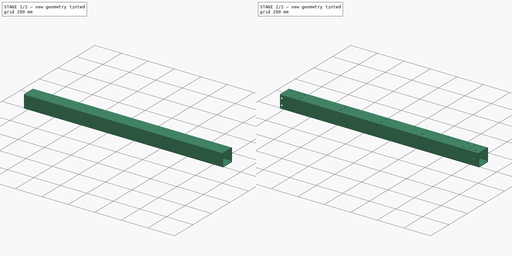
[diagram: build sequence overview — one tinted view per stage of 2, left to right]
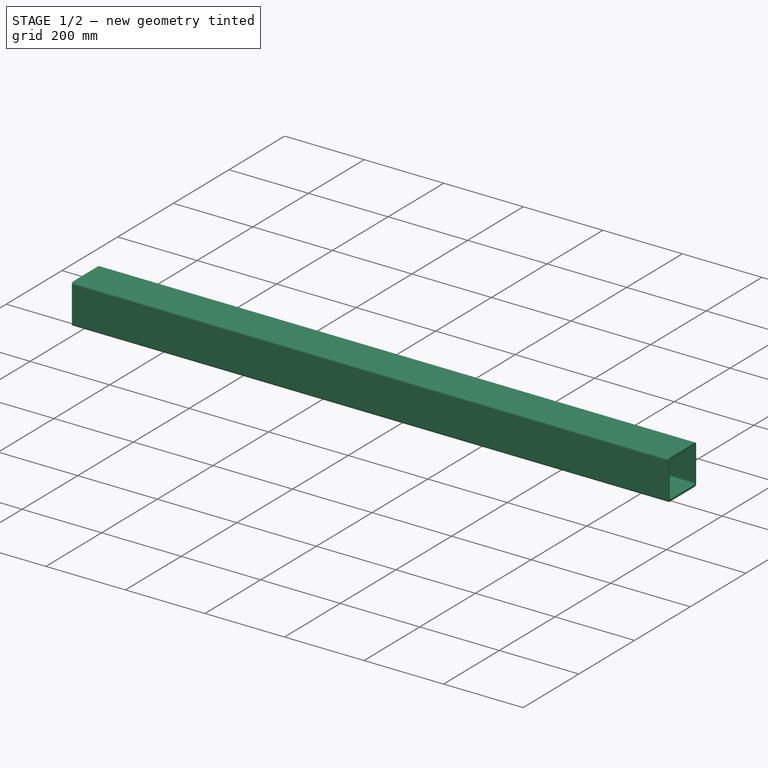
[diagram: stage 1 of 2 — iso view after this stage's code; geometry added in this stage tinted green]
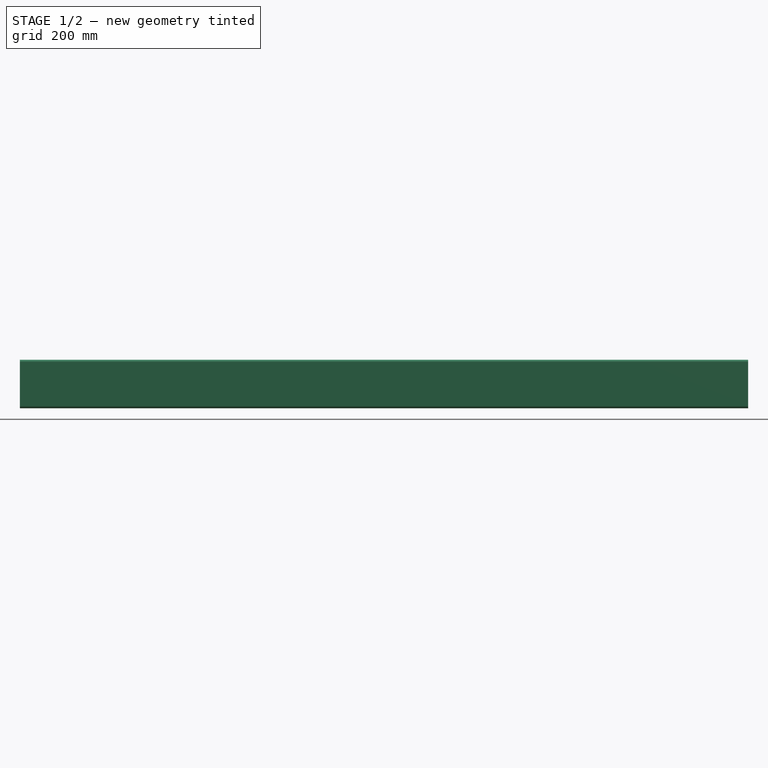
[diagram: stage 1 of 2 — front view after this stage's code; geometry added in this stage tinted green]
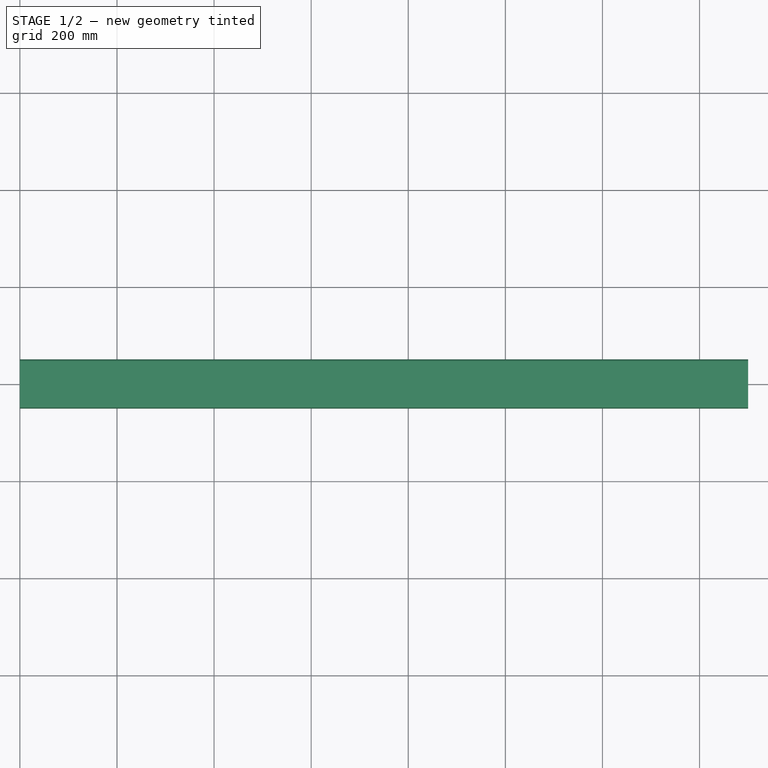
[diagram: stage 1 of 2 — top view after this stage's code; geometry added in this stage tinted green]
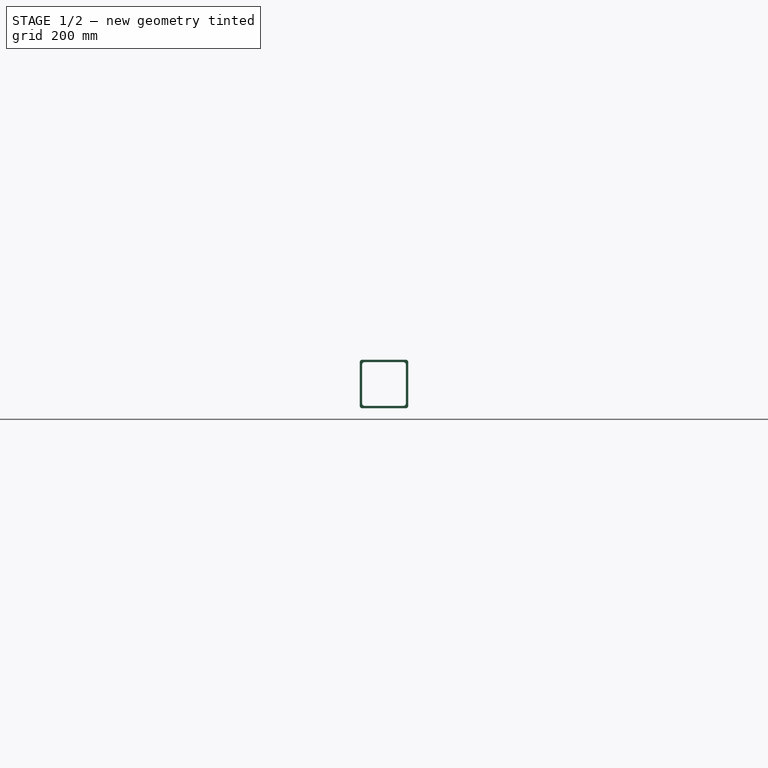
[diagram: stage 1 of 2 — right view after this stage's code; geometry added in this stage tinted green]
FCSTD DOCUMENT  (FreeCAD 0.19R24366 (Git))
Label: Base 100x100mm box tube
License: All rights reserved
LicenseURL: http://en.wikipedia.org/wiki/All_rights_reserved
objects: Sketcher::SketchObject×4, PartDesign::Pocket×3, PartDesign::Pad×1, PartDesign::Body×1
note: 13 computed .brp shape members not serialized (recipe doc carries the construction recipe); baked Part::Feature solids carry a one-line shape summary decoded from their .brp

FEATURE [Sketcher::SketchObject] Sketch  label="Tube cross section"
  FullyConstrained = true
  MapMode = 5
  Placement = pos=(0,0,0) rot=(0.57735,0.57735,0.57735;2.0944rad)
  Support = -> [YZ_Plane]
  sketch-geometry (16):
    g0: LineSegment StartX=-40 StartY=45 StartZ=0 EndX=40 EndY=45 EndZ=0
    g1: LineSegment StartX=45 StartY=40 StartZ=0 EndX=45 EndY=-40 EndZ=0
    g2: LineSegment StartX=40 StartY=-45 StartZ=0 EndX=-40 EndY=-45 EndZ=0
    g3: LineSegment StartX=-45 StartY=-40 StartZ=0 EndX=-45 EndY=40 EndZ=0
    g4: LineSegment StartX=-45 StartY=50 StartZ=0 EndX=45 EndY=50 EndZ=0
    g5: LineSegment StartX=50 StartY=45 StartZ=0 EndX=50 EndY=-45 EndZ=0
    g6: LineSegment StartX=45 StartY=-50 StartZ=0 EndX=-45 EndY=-50 EndZ=0
    g7: LineSegment StartX=-50 StartY=-45 StartZ=0 EndX=-50 EndY=45 EndZ=0
    g8: ArcOfCircle CenterX=-40 CenterY=40 CenterZ=0 NormalX=0 NormalY=0 NormalZ=1 AngleXU=0 Radius=5 StartAngle=1.5708 EndAngle=3.14159
    g9: ArcOfCircle CenterX=-40 CenterY=-40 CenterZ=0 NormalX=0 NormalY=0 NormalZ=1 AngleXU=0 Radius=5 StartAngle=3.14159 EndAngle=4.71239
    g10: ArcOfCircle CenterX=40 CenterY=-40 CenterZ=0 NormalX=0 NormalY=0 NormalZ=1 AngleXU=0 Radius=5 StartAngle=4.71239 EndAngle=6.28319
    g11: ArcOfCircle CenterX=40 CenterY=40 CenterZ=0 NormalX=0 NormalY=0 NormalZ=1 AngleXU=0 Radius=5 StartAngle=-9e-16 EndAngle=1.5708
    g12: ArcOfCircle CenterX=45 CenterY=45 CenterZ=0 NormalX=0 NormalY=0 NormalZ=1 AngleXU=0 Radius=5 StartAngle=4e-16 EndAngle=1.5708
    g13: ArcOfCircle CenterX=45 CenterY=-45 CenterZ=0 NormalX=0 NormalY=0 NormalZ=1 AngleXU=0 Radius=5 StartAngle=4.71239 EndAngle=6.28319
    g14: ArcOfCircle CenterX=-45 CenterY=-45 CenterZ=0 NormalX=0 NormalY=0 NormalZ=1 AngleXU=0 Radius=5 StartAngle=3.14159 EndAngle=4.71239
    g15: ArcOfCircle CenterX=-45 CenterY=45 CenterZ=0 NormalX=0 NormalY=0 NormalZ=1 AngleXU=0 Radius=5 StartAngle=1.5708 EndAngle=3.14159
  constraints (36):
    c: Horizontal(g0)
    c: Horizontal(g2)
    c: Vertical(g1)
    c: Vertical(g3)
    c: Horizontal(g4)
    c: Horizontal(g6)
    c: Vertical(g5)
    c: Vertical(g7)
    c: Tangent(g0,g8) = 1.5708
    c: Tangent(g3,g8) = 1.5708
    c: Tangent(g3,g9) = 1.5708
    c: Tangent(g2,g9) = 1.5708
    c: Tangent(g2,g10) = 1.5708
    c: Tangent(g1,g10) = 1.5708
    c: Tangent(g1,g11) = 1.5708
    c: Tangent(g0,g11) = 1.5708
    c: Tangent(g4,g12) = 1.5708
    c: Tangent(g5,g12) = 1.5708
    c: Tangent(g5,g13) = 1.5708
    c: Tangent(g6,g13) = 1.5708
    c: Tangent(g6,g14) = 1.5708
    c: Tangent(g7,g14) = 1.5708
    c: Tangent(g7,g15) = 1.5708
    c: Tangent(g4,g15) = 1.5708
    c: DistanceX(g7,g5) = 100
    c: DistanceY(g6,g4) = 100
    c: Radius(g15) = 5
    c: Equal(g15,g8)
    c: Equal(g14,g10)
    c: Equal(g10,g13)
    c: Symmetric(g4,g6,g-1)
    c: Symmetric(g7,g5,g-2)
    c: Symmetric(g3,g1,g-2)
    c: Symmetric(g0,g2,g-1)
    c: DistanceY(g0,g4) = 5
    c: DistanceX(g1,g5) = 5
FEATURE [PartDesign::Pad] Pad  label="Length of tube section"
  Direction = (1,1,1)
  Length = 1500
  Length2 = 100
  Placement = pos=(0,0,0) rot=(0.57735,0.57735,0.57735;2.0944rad)
  Profile = -> Sketch
  Type = 0
FEATURE [Sketcher::SketchObject] Sketch004  label="Clearance holes for rail bolts"
  FullyConstrained = true
  MapMode = 5
  Placement = pos=(0,0,0) rot=(1,0,0;1.5708rad)
  Support = -> [XZ_Plane]
  sketch-geometry (61):
    g0: GeomPoint X=890.218 Y=0 Z=0
    g1: GeomPoint X=880.218 Y=0 Z=0
    g2: LineSegment StartX=880.218 StartY=0 StartZ=0 EndX=880.218 EndY=24 EndZ=0
    g3: LineSegment StartX=880.218 StartY=0 StartZ=0 EndX=880.218 EndY=-24 EndZ=0
    g4: Circle CenterX=880.218 CenterY=24 CenterZ=0 NormalX=0 NormalY=0 NormalZ=1 AngleXU=0 Radius=4
    g5: Circle CenterX=880.218 CenterY=-24 CenterZ=0 NormalX=0 NormalY=0 NormalZ=1 AngleXU=0 Radius=4
    g6: Circle CenterX=820.218 CenterY=24 CenterZ=0 NormalX=0 NormalY=0 NormalZ=1 AngleXU=0 Radius=4
    g7: LineSegment StartX=880.218 StartY=24 StartZ=0 EndX=820.218 EndY=24 EndZ=0
    g8: Circle CenterX=760.218 CenterY=24 CenterZ=0 NormalX=0 NormalY=0 NormalZ=1 AngleXU=0 Radius=4
    g9: LineSegment StartX=820.218 StartY=24 StartZ=0 EndX=760.218 EndY=24 EndZ=0
    g10: Circle CenterX=700.218 CenterY=24 CenterZ=0 NormalX=0 NormalY=0 NormalZ=1 AngleXU=0 Radius=4
    g11: LineSegment StartX=760.218 StartY=24 StartZ=0 EndX=700.218 EndY=24 EndZ=0
    g12: Circle CenterX=640.218 CenterY=24 CenterZ=0 NormalX=0 NormalY=0 NormalZ=1 AngleXU=0 Radius=4
    g13: LineSegment StartX=700.218 StartY=24 StartZ=0 EndX=640.218 EndY=24 EndZ=0
    g14: Circle CenterX=580.218 CenterY=24 CenterZ=0 NormalX=0 NormalY=0 NormalZ=1 AngleXU=0 Radius=4
    g15: LineSegment StartX=640.218 StartY=24 StartZ=0 EndX=580.218 EndY=24 EndZ=0
    g16: Circle CenterX=520.218 CenterY=24 CenterZ=0 NormalX=0 NormalY=0 NormalZ=1 AngleXU=0 Radius=4
    g17: LineSegment StartX=580.218 StartY=24 StartZ=0 EndX=520.218 EndY=24 EndZ=0
    g18: Circle CenterX=460.218 CenterY=24 CenterZ=0 NormalX=0 NormalY=0 NormalZ=1 AngleXU=0 Radius=4
    g19: LineSegment StartX=520.218 StartY=24 StartZ=0 EndX=460.218 EndY=24 EndZ=0
    g20: Circle CenterX=400.218 CenterY=24 CenterZ=0 NormalX=0 NormalY=0 NormalZ=1 AngleXU=0 Radius=4
    g21: LineSegment StartX=460.218 StartY=24 StartZ=0 EndX=400.218 EndY=24 EndZ=0
    g22: Circle CenterX=340.218 CenterY=24 CenterZ=0 NormalX=0 NormalY=0 NormalZ=1 AngleXU=0 Radius=4
    g23: LineSegment StartX=400.218 StartY=24 StartZ=0 EndX=340.218 EndY=24 EndZ=0
    g24: Circle CenterX=280.218 CenterY=24 CenterZ=0 NormalX=0 NormalY=0 NormalZ=1 AngleXU=0 Radius=4
    g25: LineSegment StartX=340.218 StartY=24 StartZ=0 EndX=280.218 EndY=24 EndZ=0
    g26: Circle CenterX=220.218 CenterY=24 CenterZ=0 NormalX=0 NormalY=0 NormalZ=1 AngleXU=0 Radius=4
    g27: LineSegment StartX=280.218 StartY=24 StartZ=0 EndX=220.218 EndY=24 EndZ=0
    g28: Circle CenterX=160.218 CenterY=24 CenterZ=0 NormalX=0 NormalY=0 NormalZ=1 AngleXU=0 Radius=4
    g29: LineSegment StartX=220.218 StartY=24 StartZ=0 EndX=160.218 EndY=24 EndZ=0
    g30: Circle CenterX=100.218 CenterY=24 CenterZ=0 NormalX=0 NormalY=0 NormalZ=1 AngleXU=0 Radius=4
    g31: LineSegment StartX=160.218 StartY=24 StartZ=0 EndX=100.218 EndY=24 EndZ=0
    g32: Circle CenterX=820.218 CenterY=-24 CenterZ=0 NormalX=0 NormalY=0 NormalZ=1 AngleXU=0 Radius=4
    g33: LineSegment StartX=880.218 StartY=-24 StartZ=0 EndX=820.218 EndY=-24 EndZ=0
    g34: Circle CenterX=760.218 CenterY=-24 CenterZ=0 NormalX=0 NormalY=0 NormalZ=1 AngleXU=0 Radius=4
    g35: LineSegment StartX=820.218 StartY=-24 StartZ=0 EndX=760.218 EndY=-24 EndZ=0
    g36: Circle CenterX=700.218 CenterY=-24 CenterZ=0 NormalX=0 NormalY=0 NormalZ=1 AngleXU=0 Radius=4
    g37: LineSegment StartX=760.218 StartY=-24 StartZ=0 EndX=700.218 EndY=-24 EndZ=0
    g38: Circle CenterX=640.218 CenterY=-24 CenterZ=0 NormalX=0 NormalY=0 NormalZ=1 AngleXU=0 Radius=4
    g39: LineSegment StartX=700.218 StartY=-24 StartZ=0 EndX=640.218 EndY=-24 EndZ=0
    g40: Circle CenterX=580.218 CenterY=-24 CenterZ=0 NormalX=0 NormalY=0 NormalZ=1 AngleXU=0 Radius=4
    g41: LineSegment StartX=640.218 StartY=-24 StartZ=0 EndX=580.218 EndY=-24 EndZ=0
    g42: Circle CenterX=520.218 CenterY=-24 CenterZ=0 NormalX=0 NormalY=0 NormalZ=1 AngleXU=0 Radius=4
    g43: LineSegment StartX=580.218 StartY=-24 StartZ=0 EndX=520.218 EndY=-24 EndZ=0
    g44: Circle CenterX=460.218 CenterY=-24 CenterZ=0 NormalX=0 NormalY=0 NormalZ=1 AngleXU=0 Radius=4
    g45: LineSegment StartX=520.218 StartY=-24 StartZ=0 EndX=460.218 EndY=-24 EndZ=0
    g46: Circle CenterX=400.218 CenterY=-24 CenterZ=0 NormalX=0 NormalY=0 NormalZ=1 AngleXU=0 Radius=4
    g47: LineSegment StartX=460.218 StartY=-24 StartZ=0 EndX=400.218 EndY=-24 EndZ=0
    g48: Circle CenterX=340.218 CenterY=-24 CenterZ=0 NormalX=0 NormalY=0 NormalZ=1 AngleXU=0 Radius=4
    g49: LineSegment StartX=400.218 StartY=-24 StartZ=0 EndX=340.218 EndY=-24 EndZ=0
    g50: Circle CenterX=280.218 CenterY=-24 CenterZ=0 NormalX=0 NormalY=0 NormalZ=1 AngleXU=0 Radius=4
    g51: LineSegment StartX=340.218 StartY=-24 StartZ=0 EndX=280.218 EndY=-24 EndZ=0
    g52: Circle CenterX=220.218 CenterY=-24 CenterZ=0 NormalX=0 NormalY=0 NormalZ=1 AngleXU=0 Radius=4
    g53: LineSegment StartX=280.218 StartY=-24 StartZ=0 EndX=220.218 EndY=-24 EndZ=0
    g54: Circle CenterX=160.218 CenterY=-24 CenterZ=0 NormalX=0 NormalY=0 NormalZ=1 AngleXU=0 Radius=4
    g55: LineSegment StartX=220.218 StartY=-24 StartZ=0 EndX=160.218 EndY=-24 EndZ=0
    g56: Circle CenterX=100.218 CenterY=-24 CenterZ=0 NormalX=0 NormalY=0 NormalZ=1 AngleXU=0 Radius=4
    g57: LineSegment StartX=160.218 StartY=-24 StartZ=0 EndX=100.218 EndY=-24 EndZ=0
    g58: LineSegment StartX=100.218 StartY=24 StartZ=0 EndX=100.218 EndY=-24 EndZ=0
    g59: LineSegment StartX=100.218 StartY=0 StartZ=0 EndX=90.218 EndY=0 EndZ=0
    g60: LineSegment StartX=880.218 StartY=0 StartZ=0 EndX=890.218 EndY=0 EndZ=0
  constraints (153):
    c: PointOnObject(g0,g-1)
    c: DistanceX(g-1,g0) = 890.218  'OFFSET ALONG RAIL'
    c: PointOnObject(g1,g-1)
    c: DistanceX(g1,g0) = 10  'E from rail'
    c: Coincident(g2,g1)
    c: Vertical(g2)
    c: Coincident(g3,g2)
    c: Vertical(g3)
    c: Equal(g3,g2)
    c: DistanceY(g3,g2) = 48  'W from slider'
    c: Coincident(g4,g2)
    c: Coincident(g5,g3)
    c: Radius(g4) = 4  'CLEARANCE HOLE DIA'
    c: Equal(g4,g6) = 4
    c: Coincident(g4,g7)
    c: Coincident(g6,g7)
    c: Distance(g7) = 60  'P from rail'
    c: Angle(g7) = 3.14159
    c: Equal(g4,g8) = 4
    c: Coincident(g6,g9)
    c: Coincident(g8,g9)
    c: Equal(g7,g9)
    c: Parallel(g9,g7)
    c: Equal(g4,g10) = 4
    c: Coincident(g8,g11)
    c: Coincident(g10,g11)
    c: Equal(g7,g11)
    c: Parallel(g11,g7)
    c: Equal(g4,g12) = 4
    c: Coincident(g10,g13)
    c: Coincident(g12,g13)
    c: Equal(g7,g13)
    c: Parallel(g13,g7)
    c: Equal(g4,g14) = 4
    c: Coincident(g12,g15)
    c: Coincident(g14,g15)
    c: Equal(g7,g15)
    c: Parallel(g15,g7)
    c: Equal(g4,g16) = 4
    c: Coincident(g14,g17)
    c: Coincident(g16,g17)
    c: Equal(g7,g17)
    c: Parallel(g17,g7)
    c: Equal(g4,g18) = 4
    c: Coincident(g16,g19)
    c: Coincident(g18,g19)
    c: Equal(g7,g19)
    c: Parallel(g19,g7)
    c: Equal(g4,g20) = 4
    c: Coincident(g18,g21)
    c: Coincident(g20,g21)
    c: Equal(g7,g21)
    c: Parallel(g21,g7)
    c: Equal(g4,g22) = 4
    c: Coincident(g20,g23)
    c: Coincident(g22,g23)
    c: Equal(g7,g23)
    c: Parallel(g23,g7)
    c: Equal(g4,g24) = 4
    c: Coincident(g22,g25)
    c: Coincident(g24,g25)
    c: Equal(g7,g25)
    c: Parallel(g25,g7)
    c: Equal(g4,g26) = 4
    c: Coincident(g24,g27)
    c: Coincident(g26,g27)
    c: Equal(g7,g27)
    c: Parallel(g27,g7)
    c: Equal(g4,g28) = 4
    c: Coincident(g26,g29)
    c: Coincident(g28,g29)
    c: Equal(g7,g29)
    c: Parallel(g29,g7)
    c: Equal(g4,g30) = 4
    c: Coincident(g28,g31)
    c: Coincident(g30,g31)
    c: Equal(g7,g31)
    c: Parallel(g31,g7)
    c: Equal(g5,g32) = 4
    c: Coincident(g5,g33)
    c: Coincident(g32,g33)
    c: Angle(g33) = -3.14159
    c: Equal(g5,g34) = 4
    c: Coincident(g32,g35)
    c: Coincident(g34,g35)
    c: Equal(g33,g35)
    c: Parallel(g35,g33)
    c: Equal(g5,g36) = 4
    c: Coincident(g34,g37)
    c: Coincident(g36,g37)
    c: Equal(g33,g37)
    c: Parallel(g37,g33)
    c: Equal(g5,g38) = 4
    c: Coincident(g36,g39)
    c: Coincident(g38,g39)
    c: Equal(g33,g39)
    c: Parallel(g39,g33)
    c: Equal(g5,g40) = 4
    c: Coincident(g38,g41)
    c: Coincident(g40,g41)
    c: Equal(g33,g41)
    c: Parallel(g41,g33)
    c: Equal(g5,g42) = 4
    c: Coincident(g40,g43)
    c: Coincident(g42,g43)
    c: Equal(g33,g43)
    c: Parallel(g43,g33)
    c: Equal(g5,g44) = 4
    c: Coincident(g42,g45)
    c: Coincident(g44,g45)
    c: Equal(g33,g45)
    c: Parallel(g45,g33)
    c: Equal(g5,g46) = 4
    c: Coincident(g44,g47)
    c: Coincident(g46,g47)
    c: Equal(g33,g47)
    c: Parallel(g47,g33)
    c: Equal(g5,g48) = 4
    c: Coincident(g46,g49)
    c: Coincident(g48,g49)
    c: Equal(g33,g49)
    c: Parallel(g49,g33)
    c: Equal(g5,g50) = 4
    c: Coincident(g48,g51)
    c: Coincident(g50,g51)
    c: Equal(g33,g51)
    c: Parallel(g51,g33)
    c: Equal(g5,g52) = 4
    c: Coincident(g50,g53)
    c: Coincident(g52,g53)
    c: Equal(g33,g53)
    c: Parallel(g53,g33)
    c: Equal(g5,g54) = 4
    c: Coincident(g52,g55)
    c: Coincident(g54,g55)
    c: Equal(g33,g55)
    c: Parallel(g55,g33)
    c: Equal(g5,g56) = 4
    c: Coincident(g54,g57)
    c: Coincident(g56,g57)
    c: Equal(g33,g57)
    c: Parallel(g57,g33)
    c: Equal(g33,g7)
    c: Equal(g5,g4)
    c: Coincident(g58,g30)
    c: Coincident(g58,g56)
    c: PointOnObject(g59,g58)
    c: Horizontal(g59)
    c: DistanceX(g59,g0) = 800
    c: Coincident(g60,g1)
    c: Coincident(g60,g0)
    c: Equal(g59,g60)
    c: PointOnObject(g59,g-1)
FEATURE [PartDesign::Pocket] Pocket003  label="Clearance holes drill"
  BaseFeature = -> Pad
  Length = 200
  Length2 = 100
  Placement = pos=(0,0,0) rot=(0.57735,0.57735,0.57735;2.0944rad)
  Profile = -> Sketch004
  Type = 1
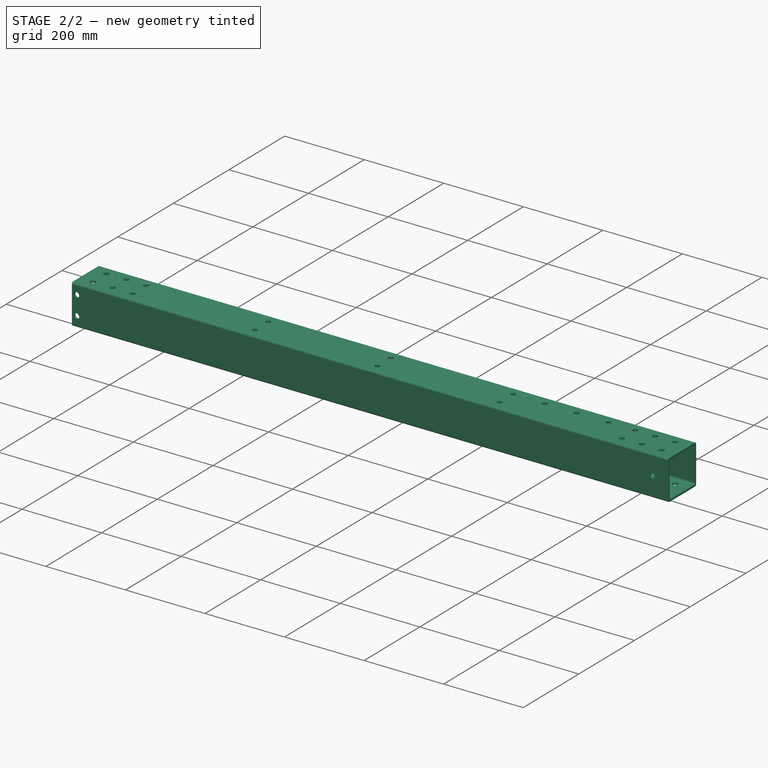
[diagram: stage 2 of 2 — iso view after this stage's code; geometry added in this stage tinted green]
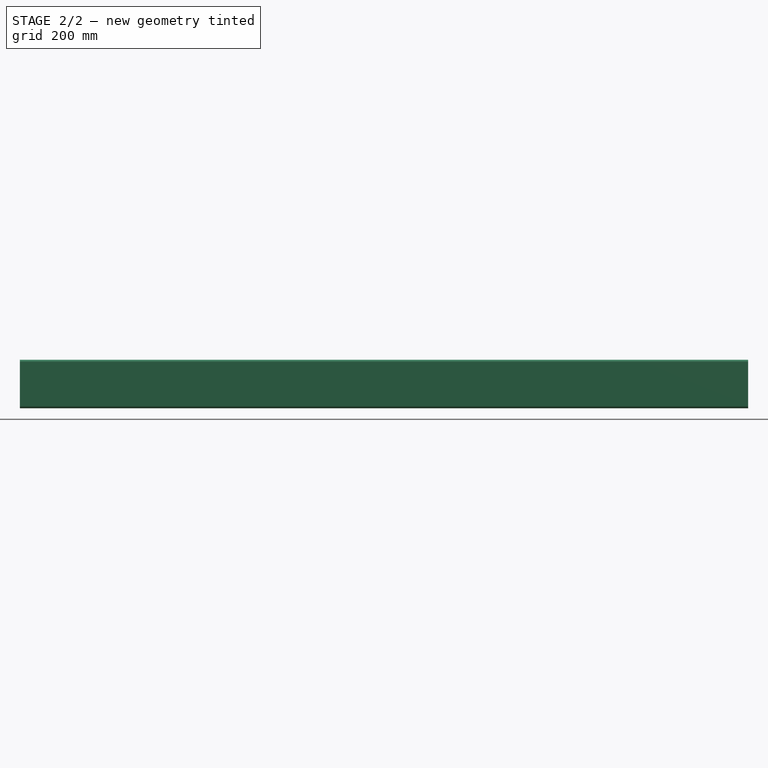
[diagram: stage 2 of 2 — front view after this stage's code; geometry added in this stage tinted green]
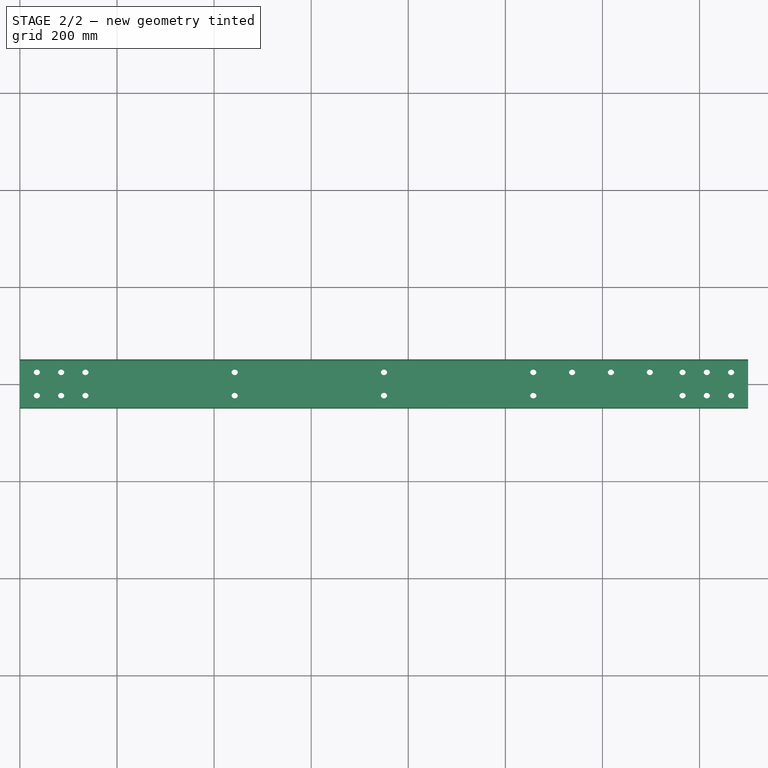
[diagram: stage 2 of 2 — top view after this stage's code; geometry added in this stage tinted green]
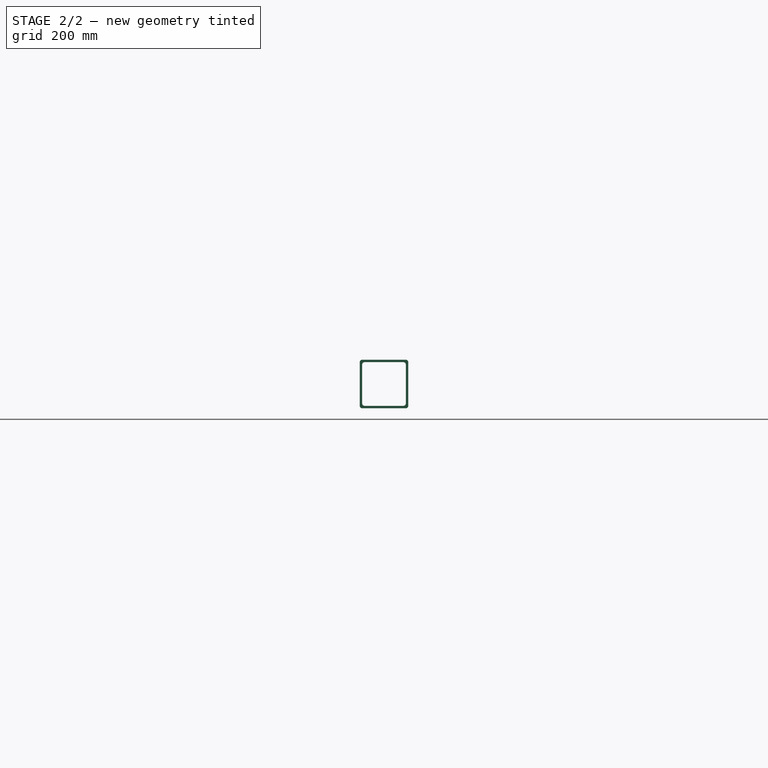
[diagram: stage 2 of 2 — right view after this stage's code; geometry added in this stage tinted green]
FEATURE [Sketcher::SketchObject] Sketch005  label="Rear bolt holes sketch"
  FullyConstrained = true
  MapMode = 5
  Placement = pos=(0,0,0) rot=(1,0,0;1.5708rad)
  Support = -> [XZ_Plane]
  sketch-geometry (6):
    g0: Circle CenterX=12 CenterY=24 CenterZ=0 NormalX=0 NormalY=0 NormalZ=1 AngleXU=0 Radius=6.5
    g1: Circle CenterX=12 CenterY=-24 CenterZ=0 NormalX=0 NormalY=0 NormalZ=1 AngleXU=0 Radius=6.5
    g2: LineSegment StartX=12 StartY=24 StartZ=0 EndX=12 EndY=-24 EndZ=0
    g3: LineSegment StartX=0 StartY=0 StartZ=0 EndX=12 EndY=0 EndZ=0
    g4: Circle CenterX=1460 CenterY=0 CenterZ=0 NormalX=0 NormalY=0 NormalZ=1 AngleXU=0 Radius=6.5
    g5: GeomPoint X=1500 Y=0 Z=0
  constraints (15):
    c: Coincident(g2,g0)
    c: Coincident(g2,g1)
    c: Symmetric(g0,g1,g-1)
    c: Radius(g0) = 6.5
    c: Equal(g0,g1)
    c: DistanceY(g2,g2) = 48
    c: DistanceX(g-1,g1) = 12
    c: Coincident(g3,g-1)
    c: PointOnObject(g3,g2)
    c: Horizontal(g3)
    c: PointOnObject(g4,g-1)
    c: Equal(g1,g4)
    c: PointOnObject(g5,g-1)
    c: DistanceX(g-1,g5) = 1500
    c: DistanceX(g4,g5) = 40
FEATURE [PartDesign::Pocket] Pocket004  label="Rear bolt holes"
  BaseFeature = -> Pocket003
  Length = 5
  Length2 = 100
  Placement = pos=(0,0,0) rot=(0.57735,0.57735,0.57735;2.0944rad)
  Profile = -> Sketch005
  Reversed = true
  Type = 1
FEATURE [Sketcher::SketchObject] Sketch006  label="Side bolt holes sketch"
  FullyConstrained = true
  MapMode = 5
  Support = -> [XY_Plane]
  sketch-geometry (43):
    g0: LineSegment StartX=35 StartY=0 StartZ=0 EndX=85 EndY=0 EndZ=0
    g1: LineSegment StartX=85 StartY=0 StartZ=0 EndX=135 EndY=0 EndZ=0
    g2: LineSegment StartX=135 StartY=0 StartZ=0 EndX=442.5 EndY=0 EndZ=0
    g3: LineSegment StartX=442.5 StartY=0 StartZ=0 EndX=750 EndY=0 EndZ=0
    g4: LineSegment StartX=750 StartY=0 StartZ=0 EndX=1057.5 EndY=0 EndZ=0
    g5: LineSegment StartX=1057.5 StartY=0 StartZ=0 EndX=1365 EndY=0 EndZ=0
    g6: LineSegment StartX=1365 StartY=0 StartZ=0 EndX=1415 EndY=0 EndZ=0
    g7: LineSegment StartX=1415 StartY=0 StartZ=0 EndX=1465 EndY=0 EndZ=0
    g8: LineSegment StartX=1465 StartY=0 StartZ=0 EndX=1500 EndY=0 EndZ=0
    g9: LineSegment StartX=750 StartY=24 StartZ=0 EndX=750 EndY=-24 EndZ=0
    g10: LineSegment StartX=442.5 StartY=24 StartZ=0 EndX=442.5 EndY=-24 EndZ=0
    g11: LineSegment StartX=135 StartY=24 StartZ=0 EndX=135 EndY=-24 EndZ=0
    g12: LineSegment StartX=85 StartY=24 StartZ=0 EndX=85 EndY=-24 EndZ=0
    g13: LineSegment StartX=35 StartY=24 StartZ=0 EndX=35 EndY=-24 EndZ=0
    g14: LineSegment StartX=1057.5 StartY=24 StartZ=0 EndX=1057.5 EndY=-24 EndZ=0
    g15: LineSegment StartX=1365 StartY=24 StartZ=0 EndX=1365 EndY=-24 EndZ=0
    g16: LineSegment StartX=1415 StartY=24 StartZ=0 EndX=1415 EndY=-24 EndZ=0
    g17: LineSegment StartX=1465 StartY=24 StartZ=0 EndX=1465 EndY=-24 EndZ=0
    g18: Circle CenterX=35 CenterY=24 CenterZ=0 NormalX=0 NormalY=0 NormalZ=1 AngleXU=0 Radius=6.5
    g19: Circle CenterX=35 CenterY=-24 CenterZ=0 NormalX=0 NormalY=0 NormalZ=1 AngleXU=0 Radius=6.5
    g20: Circle CenterX=85 CenterY=24 CenterZ=0 NormalX=0 NormalY=0 NormalZ=1 AngleXU=0 Radius=6.5
    g21: Circle CenterX=135 CenterY=24 CenterZ=0 NormalX=0 NormalY=0 NormalZ=1 AngleXU=0 Radius=6.5
    g22: Circle CenterX=135 CenterY=-24 CenterZ=0 NormalX=0 NormalY=0 NormalZ=1 AngleXU=0 Radius=6.5
    g23: Circle CenterX=85 CenterY=-24 CenterZ=0 NormalX=0 NormalY=0 NormalZ=1 AngleXU=0 Radius=6.5
    g24: Circle CenterX=442.5 CenterY=24 CenterZ=0 NormalX=0 NormalY=0 NormalZ=1 AngleXU=0 Radius=6.5
    g25: Circle CenterX=442.5 CenterY=-24 CenterZ=0 NormalX=0 NormalY=0 NormalZ=1 AngleXU=0 Radius=6.5
    g26: Circle CenterX=750 CenterY=24 CenterZ=0 NormalX=0 NormalY=0 NormalZ=1 AngleXU=0 Radius=6.5
    g27: Circle CenterX=750 CenterY=-24 CenterZ=0 NormalX=0 NormalY=0 NormalZ=1 AngleXU=0 Radius=6.5
    g28: Circle CenterX=1057.5 CenterY=24 CenterZ=0 NormalX=0 NormalY=0 NormalZ=1 AngleXU=0 Radius=6.5
    g29: Circle CenterX=1057.5 CenterY=-24 CenterZ=0 NormalX=0 NormalY=0 NormalZ=1 AngleXU=0 Radius=6.5
    g30: Circle CenterX=1365 CenterY=24 CenterZ=0 NormalX=0 NormalY=0 NormalZ=1 AngleXU=0 Radius=6.5
    g31: Circle CenterX=1415 CenterY=24 CenterZ=0 NormalX=0 NormalY=0 NormalZ=1 AngleXU=0 Radius=6.5
    g32: Circle CenterX=1465 CenterY=24 CenterZ=0 NormalX=0 NormalY=0 NormalZ=1 AngleXU=0 Radius=6.5
    g33: Circle CenterX=1465 CenterY=-24 CenterZ=0 NormalX=0 NormalY=0 NormalZ=1 AngleXU=0 Radius=6.5
    g34: Circle CenterX=1415 CenterY=-24 CenterZ=0 NormalX=0 NormalY=0 NormalZ=1 AngleXU=0 Radius=6.5
    g35: Circle CenterX=1365 CenterY=-24 CenterZ=0 NormalX=0 NormalY=0 NormalZ=1 AngleXU=0 Radius=6.5
    g36: LineSegment StartX=0 StartY=0 StartZ=0 EndX=35 EndY=0 EndZ=0
    g37: Circle CenterX=1297.5 CenterY=24 CenterZ=0 NormalX=0 NormalY=0 NormalZ=1 AngleXU=0 Radius=6.5
    g38: Circle CenterX=1217.5 CenterY=24 CenterZ=0 NormalX=0 NormalY=0 NormalZ=1 AngleXU=0 Radius=6.5
    g39: Circle CenterX=1137.5 CenterY=24 CenterZ=0 NormalX=0 NormalY=0 NormalZ=1 AngleXU=0 Radius=6.5
    g40: LineSegment StartX=1297.5 StartY=24 StartZ=0 EndX=1297.5 EndY=-24 EndZ=0
    g41: LineSegment StartX=1217.5 StartY=24 StartZ=0 EndX=1217.5 EndY=-24 EndZ=0
    g42: LineSegment StartX=1137.5 StartY=24 StartZ=0 EndX=1137.5 EndY=-24 EndZ=0
  constraints (108):
    c: Coincident(g1,g0)
    c: Coincident(g2,g1)
    c: Coincident(g3,g2)
    c: Horizontal(g0)
    c: Horizontal(g1)
    c: Horizontal(g2)
    c: Horizontal(g3)
    c: DistanceX(g-1,g0) = 35
    c: Equal(g0,g1)
    c: Coincident(g4,g3)
    c: Coincident(g5,g4)
    c: Horizontal(g4)
    c: Horizontal(g5)
    c: Equal(g2,g3)
    c: Equal(g3,g4)
    c: Equal(g4,g5)
    c: Coincident(g7,g6)
    c: Coincident(g5,g6)
    c: Horizontal(g6)
    c: Horizontal(g7)
    c: Horizontal(g8)
    c: Coincident(g7,g8)
    c: Equal(g7,g6)
    c: Equal(g6,g0)
    c: DistanceX(g-1,g8) = 1500
    c: PointOnObject(g0,g13)
    c: PointOnObject(g0,g12)
    c: PointOnObject(g1,g11)
    c: PointOnObject(g2,g10)
    c: PointOnObject(g3,g9)
    c: PointOnObject(g4,g14)
    c: PointOnObject(g5,g15)
    c: PointOnObject(g6,g16)
    c: PointOnObject(g7,g17)
    c: Symmetric(g17,g17,g-1)
    c: Symmetric(g16,g16,g-1)
    c: Symmetric(g15,g15,g-1)
    c: Symmetric(g14,g14,g-1)
    c: Symmetric(g9,g9,g-1)
    c: Symmetric(g10,g10,g-1)
    c: Symmetric(g11,g11,g-1)
    c: Symmetric(g12,g12,g-1)
    c: Symmetric(g13,g13,g-1)
    c: Equal(g13,g12)
    c: Equal(g12,g11)
    c: Equal(g11,g10)
    c: Equal(g10,g9)
    c: Equal(g9,g14)
    c: Equal(g14,g15)
    c: Equal(g15,g16)
    c: Equal(g16,g17)
    c: DistanceY(g13,g13) = 48
    c: Coincident(g18,g13)
    c: Coincident(g19,g13)
    c: Coincident(g20,g12)
    c: Coincident(g21,g11)
    c: Coincident(g22,g11)
    c: Coincident(g23,g12)
    c: Coincident(g24,g10)
    c: Coincident(g25,g10)
    c: Coincident(g26,g9)
    c: Coincident(g27,g9)
    c: Coincident(g28,g14)
    c: Coincident(g29,g14)
    c: Coincident(g30,g15)
    c: Coincident(g31,g16)
    c: Coincident(g32,g17)
    c: Coincident(g33,g17)
    c: Coincident(g34,g16)
    c: Coincident(g35,g15)
    c: Equal(g33,g34)
    c: Equal(g34,g35)
    c: Equal(g35,g30)
    c: Equal(g30,g31)
    c: Equal(g31,g32)
    c: Equal(g32,g19)
    c: Equal(g19,g23)
    c: Equal(g23,g22)
    c: Equal(g22,g21)
    c: Equal(g21,g20)
    c: Equal(g20,g18)
    c: Equal(g24,g25)
    c: Equal(g25,g26)
    c: Equal(g26,g27)
    c: Equal(g27,g28)
    c: Equal(g28,g29)
    c: Radius(g19) = 6.5
    c: Radius(g25) = 6.5
    c: Coincident(g36,g-1)
    c: Coincident(g36,g0)
    c: Horizontal(g36)
    c: Equal(g36,g8)
    c: DistanceX(g0,g0) = 50
    c: Equal(g37,g38)
    c: Equal(g38,g39)
    c: Equal(g39,g19)
    c: Coincident(g40,g37)
    c: Coincident(g41,g38)
    c: Coincident(g42,g39)
    c: Equal(g40,g41)
    c: Equal(g41,g42)
    c: Equal(g42,g13)
    c: Symmetric(g37,g40,g4)
    c: Symmetric(g38,g41,g4)
    c: Symmetric(g39,g42,g4)
    c: DistanceX(g29,g42) = 80
    c: DistanceX(g42,g41) = 80
    c: DistanceX(g41,g40) = 80
FEATURE [PartDesign::Pocket] Pocket  label="Side bolt holes various"
  BaseFeature = -> Pocket004
  Length = 5
  Length2 = 100
  Midplane = true
  Placement = pos=(0,0,0) rot=(0.57735,0.57735,0.57735;2.0944rad)
  Profile = -> Sketch006
  Type = 1
FEATURE [PartDesign::Body] Body
  Group = -> [Sketch,Pad,Sketch004,Pocket003,Sketch005,Pocket004,Sketch006,Pocket]
  Origin = -> Origin
  Tip = -> Pocket
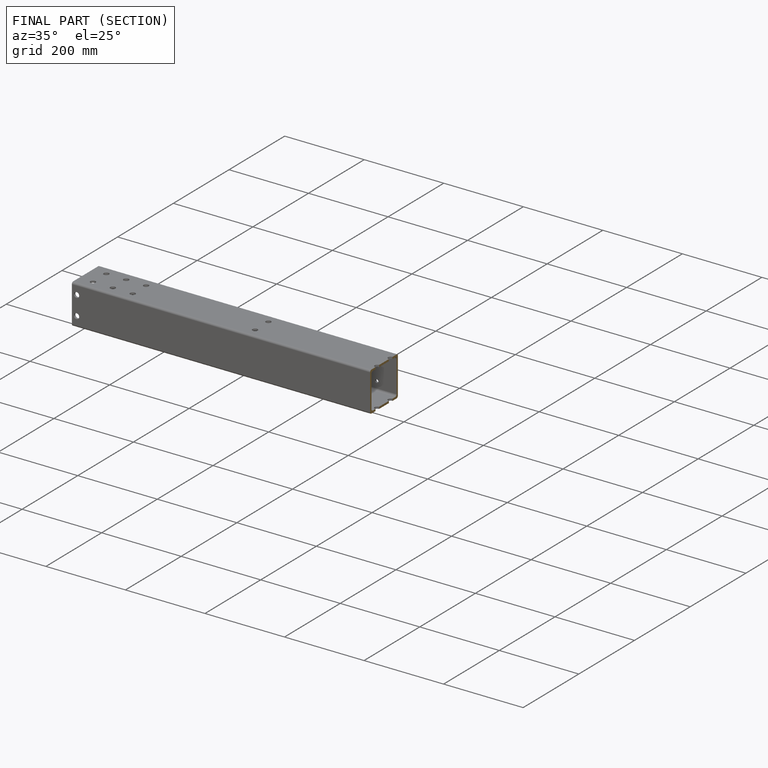
[diagram: finished part — half-section view (interior)]
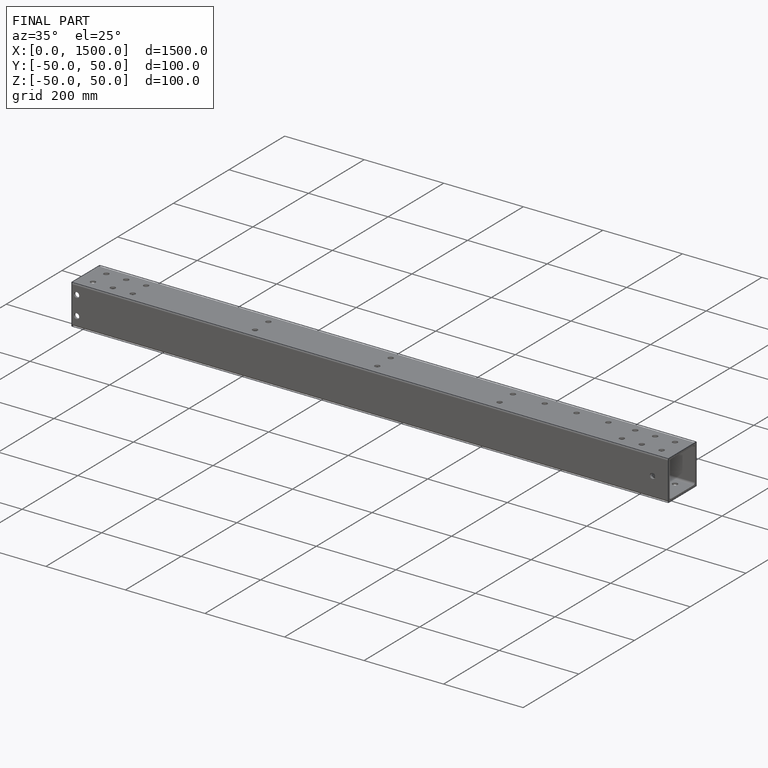
[diagram: finished part — iso view with bounding-box wireframe]
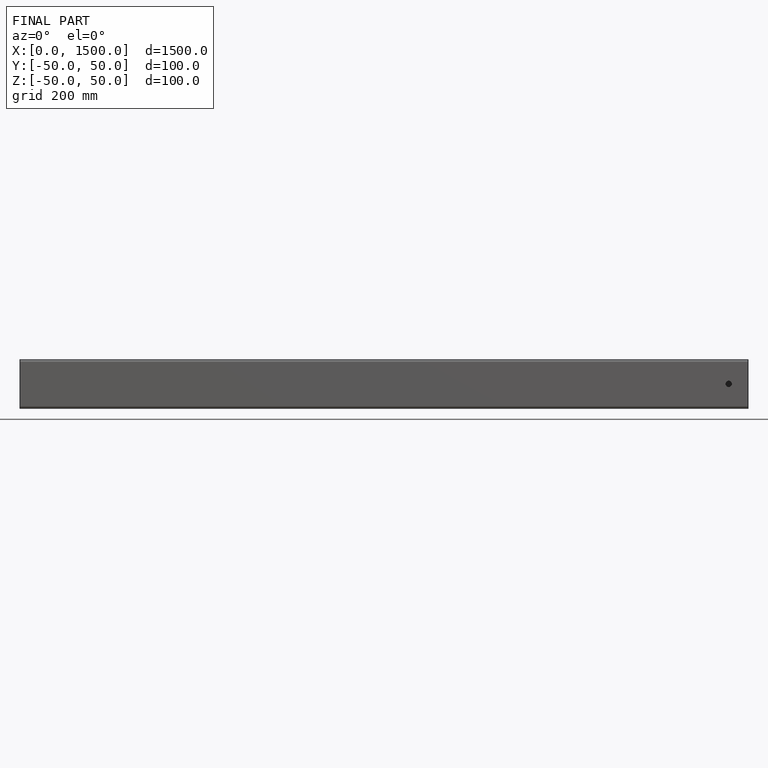
[diagram: finished part — front view with bounding-box wireframe]
